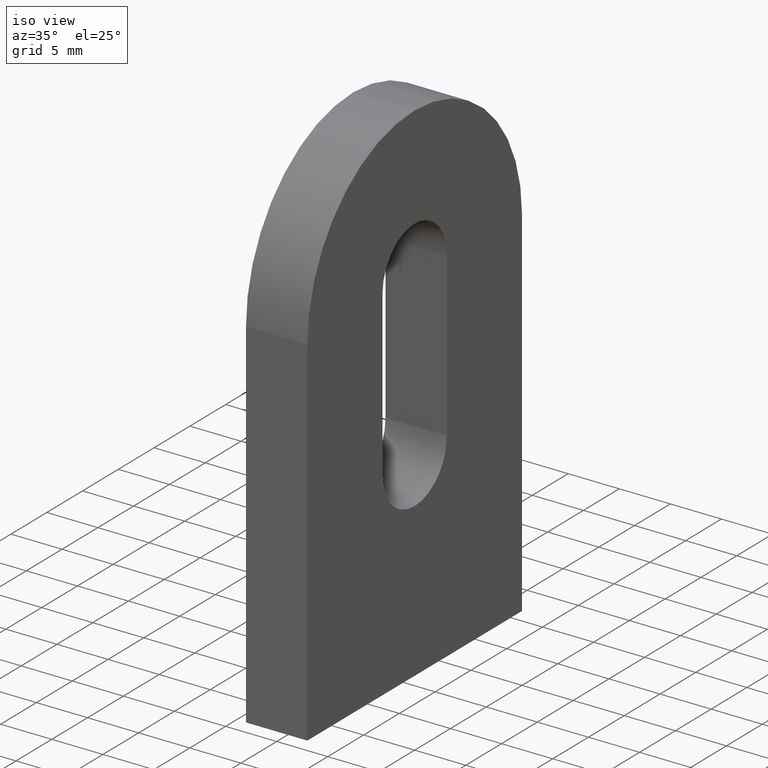
[diagram: clean part render]
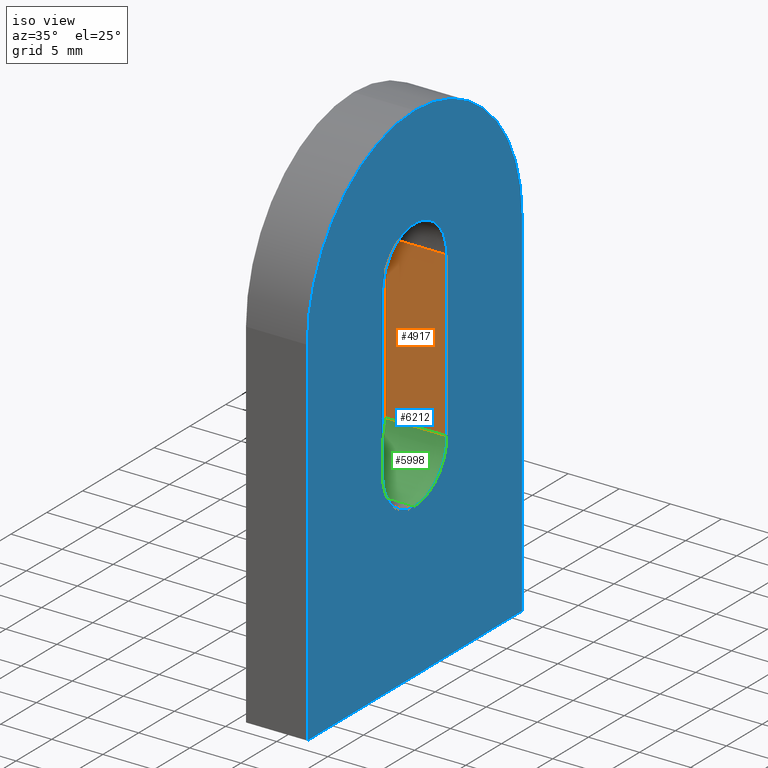
[diagram: same view with three faces highlighted in distinct colors, each labeled with its STEP entity id]
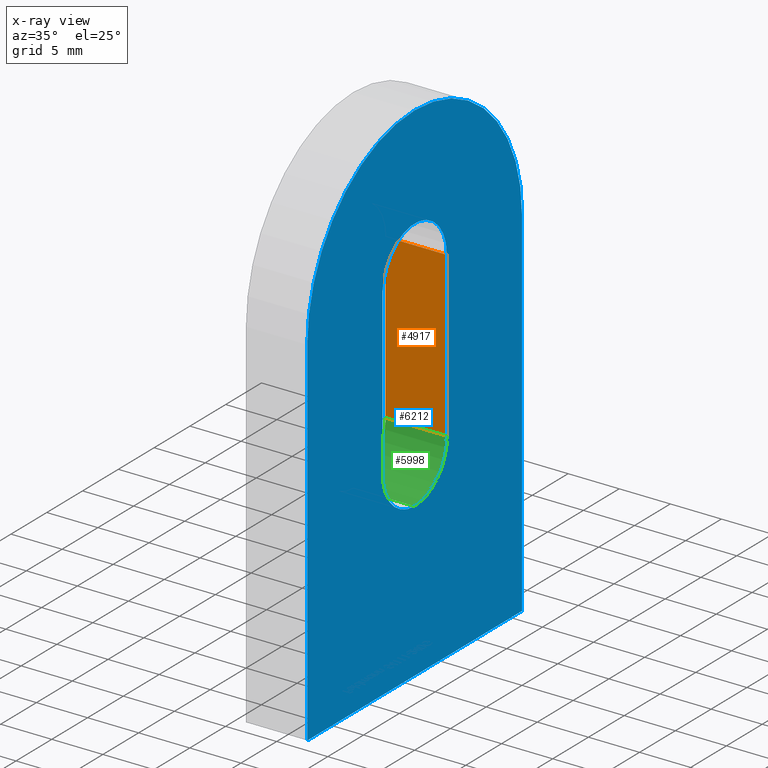
[diagram: x-ray of the same camera — body ghosted, the three highlighted faces saturated]
A machine part, iso view with three faces highlighted in distinct colors.
The next image is the same camera in x-ray (body ghosted, the three faces saturated) — at least one of them is partly hidden behind the body in this view.
Their STEP definitions:

[orange] entity #4917 — the highlighted planar face has unit normal (0, 1, 0).
#16 = ORIENTED_EDGE ( 'NONE', *, *, #4200, .T. ) ;
#379 = VECTOR ( 'NONE', #9177, 1000.000000000000000 ) ;
#521 = ORIENTED_EDGE ( 'NONE', *, *, #2548, .T. ) ;
#741 = EDGE_CURVE ( 'NONE', #8108, #1007, #3638, .T. ) ;
#799 = VECTOR ( 'NONE', #4395, 1000.000000000000000 ) ;
#1007 = VERTEX_POINT ( 'NONE', #5972 ) ;
#1989 = ORIENTED_EDGE ( 'NONE', *, *, #2787, .F. ) ;
#2128 = DIRECTION ( 'NONE',  ( 0.0000000000000000000, 1.000000000000000000, 1.626303258728256700E-016 ) ) ;
#2305 = CARTESIAN_POINT ( 'NONE',  ( -3.000000000000000000, 4.500000000000003600, 19.49999999999999600 ) ) ;
#2536 = CARTESIAN_POINT ( 'NONE',  ( -3.000000000000000000, 4.500000000000000900, 35.50000000000000000 ) ) ;
#2548 = EDGE_CURVE ( 'NONE', #9750, #3420, #4648, .T. ) ;
#2787 = EDGE_CURVE ( 'NONE', #9750, #8108, #8333, .T. ) ;
#2848 = CARTESIAN_POINT ( 'NONE',  ( 3.000000000000000000, 4.500000000000000900, 35.50000000000000000 ) ) ;
#2985 = PLANE ( 'NONE',  #9551 ) ;
#3211 = EDGE_LOOP ( 'NONE', ( #16, #4241, #1989, #521 ) ) ;
#3420 = VERTEX_POINT ( 'NONE', #6639 ) ;
#3493 = VECTOR ( 'NONE', #8392, 1000.000000000000000 ) ;
#3638 = LINE ( 'NONE', #2536, #799 ) ;
#4200 = EDGE_CURVE ( 'NONE', #3420, #1007, #9143, .T. ) ;
#4241 = ORIENTED_EDGE ( 'NONE', *, *, #741, .F. ) ;
#4395 = DIRECTION ( 'NONE',  ( 1.000000000000000000, -0.0000000000000000000, -0.0000000000000000000 ) ) ;
#4648 = LINE ( 'NONE', #2305, #8754 ) ;
#4828 = CARTESIAN_POINT ( 'NONE',  ( -3.000000000000000000, 4.500000000000000900, 35.50000000000000000 ) ) ;
#4917 = ADVANCED_FACE ( 'NONE', ( #6050 ), #2985, .F. ) ;
#5972 = CARTESIAN_POINT ( 'NONE',  ( 3.000000000000000000, 4.500000000000000900, 35.50000000000000000 ) ) ;
#6050 = FACE_OUTER_BOUND ( 'NONE', #3211, .T. ) ;
#6639 = CARTESIAN_POINT ( 'NONE',  ( 3.000000000000000000, 4.500000000000003600, 19.49999999999999600 ) ) ;
#8108 = VERTEX_POINT ( 'NONE', #9987 ) ;
#8333 = LINE ( 'NONE', #4828, #3493 ) ;
#8392 = DIRECTION ( 'NONE',  ( -0.0000000000000000000, -1.626303258728256700E-016, 1.000000000000000000 ) ) ;
#8465 = CARTESIAN_POINT ( 'NONE',  ( -3.000000000000000000, 4.500000000000000900, 35.50000000000000000 ) ) ;
#8754 = VECTOR ( 'NONE', #9625, 1000.000000000000000 ) ;
#9143 = LINE ( 'NONE', #2848, #379 ) ;
#9177 = DIRECTION ( 'NONE',  ( -0.0000000000000000000, -1.626303258728256700E-016, 1.000000000000000000 ) ) ;
#9364 = CARTESIAN_POINT ( 'NONE',  ( -3.000000000000000000, 4.500000000000003600, 19.49999999999999600 ) ) ;
#9551 = AXIS2_PLACEMENT_3D ( 'NONE', #8465, #2128, #11153 ) ;
#9625 = DIRECTION ( 'NONE',  ( 1.000000000000000000, -0.0000000000000000000, -0.0000000000000000000 ) ) ;
#9750 = VERTEX_POINT ( 'NONE', #9364 ) ;
#9987 = CARTESIAN_POINT ( 'NONE',  ( -3.000000000000000000, 4.500000000000000900, 35.50000000000000000 ) ) ;
#11153 = DIRECTION ( 'NONE',  ( 0.0000000000000000000, -1.626303258728256700E-016, 1.000000000000000000 ) ) ;

[blue] entity #6212 — the highlighted planar face has unit normal (-1, -0, 0).
#131 = CIRCLE ( 'NONE', #2566, 4.500000000000000900 ) ;
#171 = AXIS2_PLACEMENT_3D ( 'NONE', #3383, #10587, #6955 ) ;
#379 = VECTOR ( 'NONE', #9177, 1000.000000000000000 ) ;
#422 = EDGE_LOOP ( 'NONE', ( #9104, #9359, #3180, #11365, #3190 ) ) ;
#495 = VERTEX_POINT ( 'NONE', #2508 ) ;
#583 = ORIENTED_EDGE ( 'NONE', *, *, #7734, .F. ) ;
#686 = CARTESIAN_POINT ( 'NONE',  ( 3.000000000000000000, 7.966394000823675000E-016, 19.49999999999999600 ) ) ;
#844 = VECTOR ( 'NONE', #3772, 1000.000000000000000 ) ;
#915 = DIRECTION ( 'NONE',  ( 0.0000000000000000000, 4.956352788505163400E-017, 1.000000000000000000 ) ) ;
#1007 = VERTEX_POINT ( 'NONE', #5972 ) ;
#1273 = DIRECTION ( 'NONE',  ( 0.0000000000000000000, 0.0000000000000000000, 1.000000000000000000 ) ) ;
#1560 = CIRCLE ( 'NONE', #11575, 15.00000000000000000 ) ;
#1630 = EDGE_CURVE ( 'NONE', #3809, #495, #5104, .T. ) ;
#1680 = CIRCLE ( 'NONE', #6988, 15.00000000000000000 ) ;
#1786 = VERTEX_POINT ( 'NONE', #10156 ) ;
#1982 = LINE ( 'NONE', #2630, #2116 ) ;
#2003 = VECTOR ( 'NONE', #5499, 1000.000000000000000 ) ;
#2116 = VECTOR ( 'NONE', #915, 1000.000000000000000 ) ;
#2138 = CARTESIAN_POINT ( 'NONE',  ( 3.000000000000000000, -1.776356839400250900E-015, 35.50000000000000000 ) ) ;
#2190 = ORIENTED_EDGE ( 'NONE', *, *, #10531, .F. ) ;
#2274 = LINE ( 'NONE', #11033, #2003 ) ;
#2416 = EDGE_CURVE ( 'NONE', #6649, #7830, #1680, .T. ) ;
#2508 = CARTESIAN_POINT ( 'NONE',  ( 3.000000000000000000, -15.00000000000000000, -3.061616997868383000E-015 ) ) ;
#2566 = AXIS2_PLACEMENT_3D ( 'NONE', #2138, #7478, #3918 ) ;
#2600 = CARTESIAN_POINT ( 'NONE',  ( 3.000000000000000000, 15.00000000000000000, -3.061616997868383000E-015 ) ) ;
#2630 = CARTESIAN_POINT ( 'NONE',  ( 3.000000000000000000, -15.00000000000000000, -3.061616997868383000E-015 ) ) ;
#2745 = VERTEX_POINT ( 'NONE', #6501 ) ;
#2848 = CARTESIAN_POINT ( 'NONE',  ( 3.000000000000000000, 4.500000000000000900, 35.50000000000000000 ) ) ;
#2888 = VERTEX_POINT ( 'NONE', #9193 ) ;
#3180 = ORIENTED_EDGE ( 'NONE', *, *, #1630, .F. ) ;
#3190 = ORIENTED_EDGE ( 'NONE', *, *, #8275, .F. ) ;
#3223 = PLANE ( 'NONE',  #10825 ) ;
#3383 = CARTESIAN_POINT ( 'NONE',  ( 3.000000000000000000, 7.966394000823675000E-016, 19.49999999999999600 ) ) ;
#3420 = VERTEX_POINT ( 'NONE', #6639 ) ;
#3772 = DIRECTION ( 'NONE',  ( 0.0000000000000000000, 1.626303258728256700E-016, -1.000000000000000000 ) ) ;
#3809 = VERTEX_POINT ( 'NONE', #9185 ) ;
#3918 = DIRECTION ( 'NONE',  ( 0.0000000000000000000, 0.0000000000000000000, -1.000000000000000000 ) ) ;
#4002 = DIRECTION ( 'NONE',  ( -1.000000000000000000, -0.0000000000000000000, 0.0000000000000000000 ) ) ;
#4071 = DIRECTION ( 'NONE',  ( -1.000000000000000000, -0.0000000000000000000, 0.0000000000000000000 ) ) ;
#4200 = EDGE_CURVE ( 'NONE', #3420, #1007, #9143, .T. ) ;
#4690 = DIRECTION ( 'NONE',  ( 0.0000000000000000000, 0.0000000000000000000, 1.000000000000000000 ) ) ;
#5104 = LINE ( 'NONE', #2600, #11283 ) ;
#5499 = DIRECTION ( 'NONE',  ( 0.0000000000000000000, 4.956352788505163400E-017, -1.000000000000000000 ) ) ;
#5576 = CARTESIAN_POINT ( 'NONE',  ( 3.000000000000000000, -4.500000000000000900, 35.50000000000000000 ) ) ;
#5822 = CARTESIAN_POINT ( 'NONE',  ( 3.000000000000000000, 0.0000000000000000000, 34.99999999999999300 ) ) ;
#5972 = CARTESIAN_POINT ( 'NONE',  ( 3.000000000000000000, 4.500000000000000900, 35.50000000000000000 ) ) ;
#6045 = CARTESIAN_POINT ( 'NONE',  ( 3.000000000000000000, 0.0000000000000000000, 34.99999999999999300 ) ) ;
#6133 = EDGE_CURVE ( 'NONE', #2888, #3809, #2274, .T. ) ;
#6212 = ADVANCED_FACE ( 'NONE', ( #8087, #7949 ), #3223, .F. ) ;
#6351 = EDGE_CURVE ( 'NONE', #1786, #3420, #7523, .T. ) ;
#6501 = CARTESIAN_POINT ( 'NONE',  ( 3.000000000000000000, -4.500000000000000900, 35.50000000000000000 ) ) ;
#6639 = CARTESIAN_POINT ( 'NONE',  ( 3.000000000000000000, 4.500000000000003600, 19.49999999999999600 ) ) ;
#6649 = VERTEX_POINT ( 'NONE', #11547 ) ;
#6796 = LINE ( 'NONE', #5576, #844 ) ;
#6896 = EDGE_CURVE ( 'NONE', #1007, #2745, #131, .T. ) ;
#6955 = DIRECTION ( 'NONE',  ( 0.0000000000000000000, 0.0000000000000000000, -1.000000000000000000 ) ) ;
#6961 = ORIENTED_EDGE ( 'NONE', *, *, #6351, .F. ) ;
#6988 = AXIS2_PLACEMENT_3D ( 'NONE', #5822, #4002, #1273 ) ;
#7017 = DIRECTION ( 'NONE',  ( 0.0000000000000000000, 0.0000000000000000000, -1.000000000000000000 ) ) ;
#7371 = DIRECTION ( 'NONE',  ( -1.000000000000000000, -0.0000000000000000000, 0.0000000000000000000 ) ) ;
#7378 = ORIENTED_EDGE ( 'NONE', *, *, #6896, .F. ) ;
#7478 = DIRECTION ( 'NONE',  ( 1.000000000000000000, 0.0000000000000000000, 0.0000000000000000000 ) ) ;
#7523 = CIRCLE ( 'NONE', #8060, 4.500000000000000900 ) ;
#7710 = DIRECTION ( 'NONE',  ( 0.0000000000000000000, 0.0000000000000000000, 1.000000000000000000 ) ) ;
#7734 = EDGE_CURVE ( 'NONE', #2745, #9332, #6796, .T. ) ;
#7830 = VERTEX_POINT ( 'NONE', #10163 ) ;
#7949 = FACE_OUTER_BOUND ( 'NONE', #422, .T. ) ;
#8003 = EDGE_CURVE ( 'NONE', #495, #6649, #1982, .T. ) ;
#8012 = DIRECTION ( 'NONE',  ( 0.0000000000000000000, -1.000000000000000000, 0.0000000000000000000 ) ) ;
#8060 = AXIS2_PLACEMENT_3D ( 'NONE', #686, #10655, #7017 ) ;
#8087 = FACE_BOUND ( 'NONE', #10570, .T. ) ;
#8275 = EDGE_CURVE ( 'NONE', #7830, #2888, #1560, .T. ) ;
#8375 = CARTESIAN_POINT ( 'NONE',  ( 3.000000000000000000, 0.0000000000000000000, 34.99999999999999300 ) ) ;
#8751 = CIRCLE ( 'NONE', #171, 4.500000000000000900 ) ;
#9104 = ORIENTED_EDGE ( 'NONE', *, *, #2416, .F. ) ;
#9143 = LINE ( 'NONE', #2848, #379 ) ;
#9177 = DIRECTION ( 'NONE',  ( -0.0000000000000000000, -1.626303258728256700E-016, 1.000000000000000000 ) ) ;
#9185 = CARTESIAN_POINT ( 'NONE',  ( 3.000000000000000000, 15.00000000000000000, -3.061616997868383000E-015 ) ) ;
#9193 = CARTESIAN_POINT ( 'NONE',  ( 3.000000000000000000, 14.99999999999999800, 34.99999999999999300 ) ) ;
#9332 = VERTEX_POINT ( 'NONE', #10631 ) ;
#9359 = ORIENTED_EDGE ( 'NONE', *, *, #8003, .F. ) ;
#10156 = CARTESIAN_POINT ( 'NONE',  ( 3.000000000000000000, 7.966394000823675000E-016, 14.99999999999999600 ) ) ;
#10163 = CARTESIAN_POINT ( 'NONE',  ( 3.000000000000000000, 0.0000000000000000000, 49.99999999999999300 ) ) ;
#10531 = EDGE_CURVE ( 'NONE', #9332, #1786, #8751, .T. ) ;
#10570 = EDGE_LOOP ( 'NONE', ( #583, #7378, #11711, #6961, #2190 ) ) ;
#10587 = DIRECTION ( 'NONE',  ( 1.000000000000000000, 0.0000000000000000000, 0.0000000000000000000 ) ) ;
#10631 = CARTESIAN_POINT ( 'NONE',  ( 3.000000000000000000, -4.500000000000000000, 19.49999999999999600 ) ) ;
#10655 = DIRECTION ( 'NONE',  ( 1.000000000000000000, 0.0000000000000000000, 0.0000000000000000000 ) ) ;
#10825 = AXIS2_PLACEMENT_3D ( 'NONE', #6045, #4071, #7710 ) ;
#11033 = CARTESIAN_POINT ( 'NONE',  ( 3.000000000000000000, 14.99999999999999800, 34.99999999999999300 ) ) ;
#11283 = VECTOR ( 'NONE', #8012, 1000.000000000000000 ) ;
#11365 = ORIENTED_EDGE ( 'NONE', *, *, #6133, .F. ) ;
#11547 = CARTESIAN_POINT ( 'NONE',  ( 3.000000000000000000, -14.99999999999999800, 34.99999999999999300 ) ) ;
#11575 = AXIS2_PLACEMENT_3D ( 'NONE', #8375, #7371, #4690 ) ;
#11711 = ORIENTED_EDGE ( 'NONE', *, *, #4200, .F. ) ;

[green] entity #5998 — the highlighted cylindrical surface (partial cylindrical patch) has radius 4.5 mm, axis along (1, -0, -0).
#109 = ORIENTED_EDGE ( 'NONE', *, *, #6351, .T. ) ;
#686 = CARTESIAN_POINT ( 'NONE',  ( 3.000000000000000000, 7.966394000823675000E-016, 19.49999999999999600 ) ) ;
#1227 = DIRECTION ( 'NONE',  ( 0.0000000000000000000, 0.0000000000000000000, -1.000000000000000000 ) ) ;
#1267 = VERTEX_POINT ( 'NONE', #10594 ) ;
#1717 = FACE_OUTER_BOUND ( 'NONE', #7110, .T. ) ;
#1786 = VERTEX_POINT ( 'NONE', #10156 ) ;
#1854 = AXIS2_PLACEMENT_3D ( 'NONE', #7592, #6602, #1227 ) ;
#2305 = CARTESIAN_POINT ( 'NONE',  ( -3.000000000000000000, 4.500000000000003600, 19.49999999999999600 ) ) ;
#2548 = EDGE_CURVE ( 'NONE', #9750, #3420, #4648, .T. ) ;
#3332 = DIRECTION ( 'NONE',  ( 0.0000000000000000000, 0.0000000000000000000, -1.000000000000000000 ) ) ;
#3420 = VERTEX_POINT ( 'NONE', #6639 ) ;
#4648 = LINE ( 'NONE', #2305, #8754 ) ;
#5136 = CARTESIAN_POINT ( 'NONE',  ( -3.000000000000000000, 7.966394000823675000E-016, 19.49999999999999600 ) ) ;
#5647 = LINE ( 'NONE', #7795, #5934 ) ;
#5934 = VECTOR ( 'NONE', #9466, 1000.000000000000000 ) ;
#5998 = ADVANCED_FACE ( 'NONE', ( #1717 ), #11022, .F. ) ;
#6219 = ORIENTED_EDGE ( 'NONE', *, *, #2548, .F. ) ;
#6351 = EDGE_CURVE ( 'NONE', #1786, #3420, #7523, .T. ) ;
#6602 = DIRECTION ( 'NONE',  ( 1.000000000000000000, 0.0000000000000000000, 0.0000000000000000000 ) ) ;
#6639 = CARTESIAN_POINT ( 'NONE',  ( 3.000000000000000000, 4.500000000000003600, 19.49999999999999600 ) ) ;
#6903 = DIRECTION ( 'NONE',  ( 1.000000000000000000, -0.0000000000000000000, -0.0000000000000000000 ) ) ;
#7017 = DIRECTION ( 'NONE',  ( 0.0000000000000000000, 0.0000000000000000000, -1.000000000000000000 ) ) ;
#7110 = EDGE_LOOP ( 'NONE', ( #10936, #11585, #109, #6219 ) ) ;
#7523 = CIRCLE ( 'NONE', #8060, 4.500000000000000900 ) ;
#7592 = CARTESIAN_POINT ( 'NONE',  ( -3.000000000000000000, 7.966394000823675000E-016, 19.49999999999999600 ) ) ;
#7795 = CARTESIAN_POINT ( 'NONE',  ( -3.000000000000000000, 7.966394000823675000E-016, 14.99999999999999600 ) ) ;
#8060 = AXIS2_PLACEMENT_3D ( 'NONE', #686, #10655, #7017 ) ;
#8131 = AXIS2_PLACEMENT_3D ( 'NONE', #5136, #6903, #3332 ) ;
#8477 = CIRCLE ( 'NONE', #1854, 4.500000000000000900 ) ;
#8754 = VECTOR ( 'NONE', #9625, 1000.000000000000000 ) ;
#9364 = CARTESIAN_POINT ( 'NONE',  ( -3.000000000000000000, 4.500000000000003600, 19.49999999999999600 ) ) ;
#9466 = DIRECTION ( 'NONE',  ( 1.000000000000000000, -0.0000000000000000000, -0.0000000000000000000 ) ) ;
#9625 = DIRECTION ( 'NONE',  ( 1.000000000000000000, -0.0000000000000000000, -0.0000000000000000000 ) ) ;
#9750 = VERTEX_POINT ( 'NONE', #9364 ) ;
#10156 = CARTESIAN_POINT ( 'NONE',  ( 3.000000000000000000, 7.966394000823675000E-016, 14.99999999999999600 ) ) ;
#10389 = EDGE_CURVE ( 'NONE', #1267, #9750, #8477, .T. ) ;
#10404 = EDGE_CURVE ( 'NONE', #1267, #1786, #5647, .T. ) ;
#10594 = CARTESIAN_POINT ( 'NONE',  ( -3.000000000000000000, 7.966394000823675000E-016, 14.99999999999999600 ) ) ;
#10655 = DIRECTION ( 'NONE',  ( 1.000000000000000000, 0.0000000000000000000, 0.0000000000000000000 ) ) ;
#10936 = ORIENTED_EDGE ( 'NONE', *, *, #10389, .F. ) ;
#11022 = CYLINDRICAL_SURFACE ( 'NONE', #8131, 4.500000000000000900 ) ;
#11585 = ORIENTED_EDGE ( 'NONE', *, *, #10404, .T. ) ;